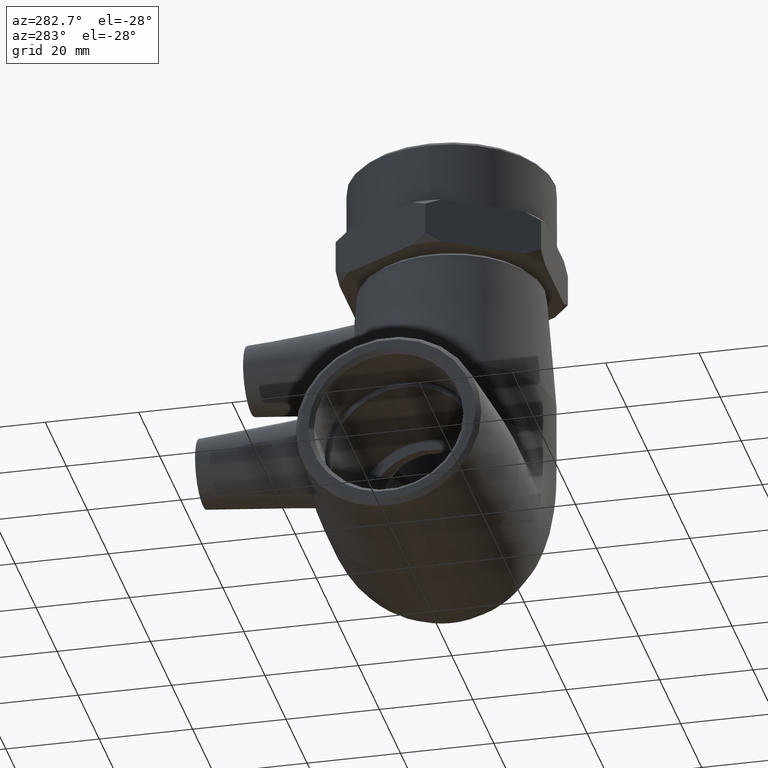
[diagram: clean part render]
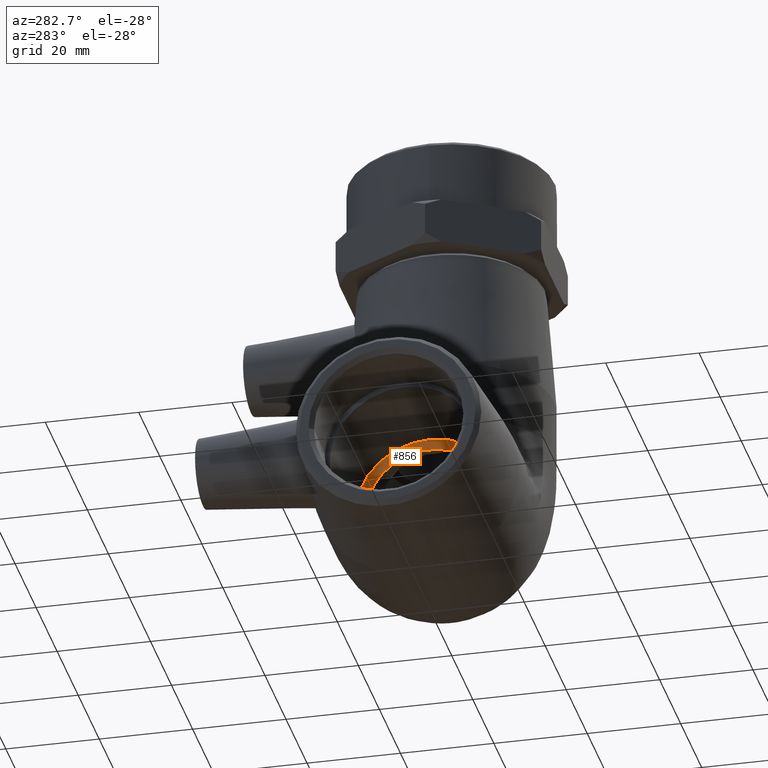
[diagram: same view with one face highlighted and labeled with its STEP entity id]
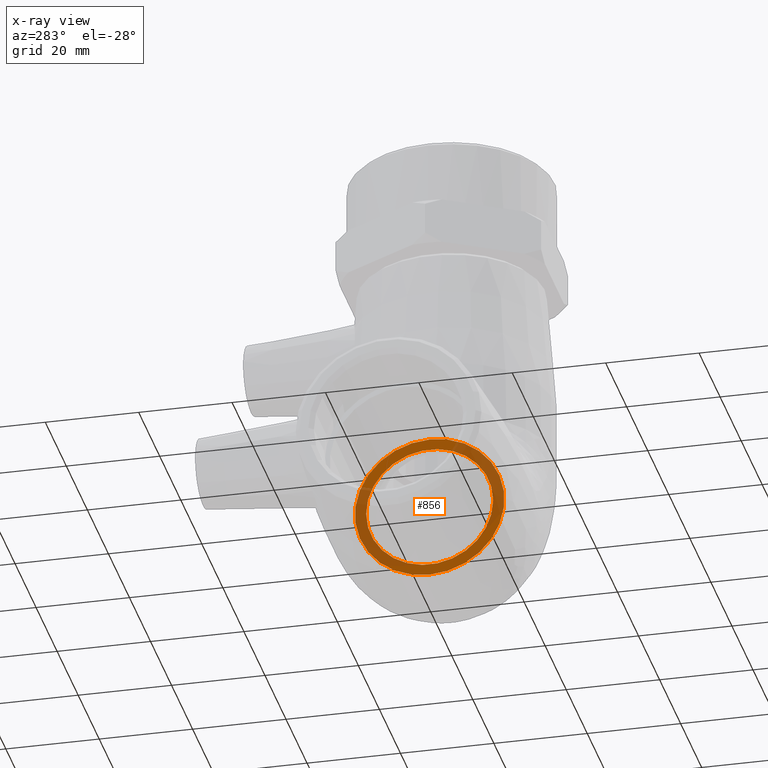
[diagram: x-ray of the same camera — body ghosted, the highlighted face saturated]
A machine part, auxiliary view. The second image highlights one B-rep face of the part: STEP entity #856.
The next image is the same camera in x-ray: the body ghosted, the highlighted face saturated — about 49% of this face is hidden behind the body in this view.
In plain terms, the highlighted planar face has unit normal (-1, 0, 0).
Its self-contained STEP definition (entity closure, byte-faithful):
#53=FACE_BOUND('',#274,.T.);
#138=PLANE('',#962);
#189=FACE_OUTER_BOUND('',#273,.T.);
#273=EDGE_LOOP('',(#748));
#274=EDGE_LOOP('',(#749));
#351=CIRCLE('',#961,16.);
#352=CIRCLE('',#963,13.6);
#456=VERTEX_POINT('',#1572);
#457=VERTEX_POINT('',#1575);
#561=EDGE_CURVE('',#456,#456,#351,.T.);
#562=EDGE_CURVE('',#457,#457,#352,.T.);
#748=ORIENTED_EDGE('',*,*,#561,.F.);
#749=ORIENTED_EDGE('',*,*,#562,.T.);
#856=ADVANCED_FACE('',(#189,#53),#138,.T.);
#961=AXIS2_PLACEMENT_3D('',#1573,#1185,#1186);
#962=AXIS2_PLACEMENT_3D('',#1574,#1187,#1188);
#963=AXIS2_PLACEMENT_3D('',#1576,#1189,#1190);
#1185=DIRECTION('center_axis',(1.,-2.27504718160893E-18,0.));
#1186=DIRECTION('ref_axis',(0.,0.,-1.));
#1187=DIRECTION('center_axis',(-1.,2.27504718160893E-18,0.));
#1188=DIRECTION('ref_axis',(0.,0.,1.));
#1189=DIRECTION('center_axis',(1.,-2.27504718160893E-18,0.));
#1190=DIRECTION('ref_axis',(0.,0.,-1.));
#1572=CARTESIAN_POINT('',(-21.,2.00721086944955E-15,16.));
#1573=CARTESIAN_POINT('Origin',(-21.,4.77759908137874E-17,0.));
#1574=CARTESIAN_POINT('Origin',(-21.,-6.78722409179998E-17,-1.08847209374061E-15));
#1575=CARTESIAN_POINT('',(-21.,13.6,0.));
#1576=CARTESIAN_POINT('Origin',(-21.,-9.10018872643571E-17,0.));